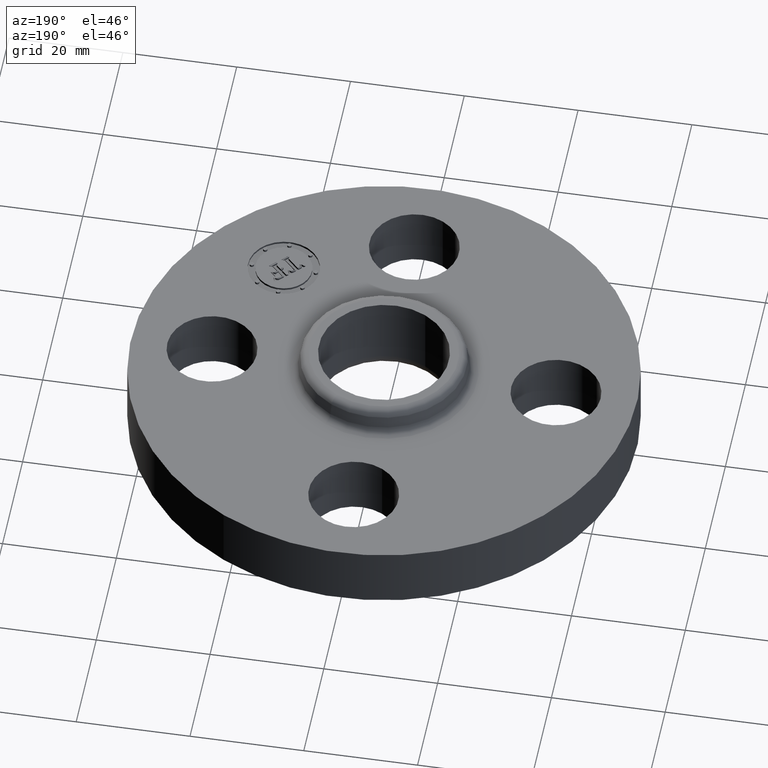
[diagram: clean part render]
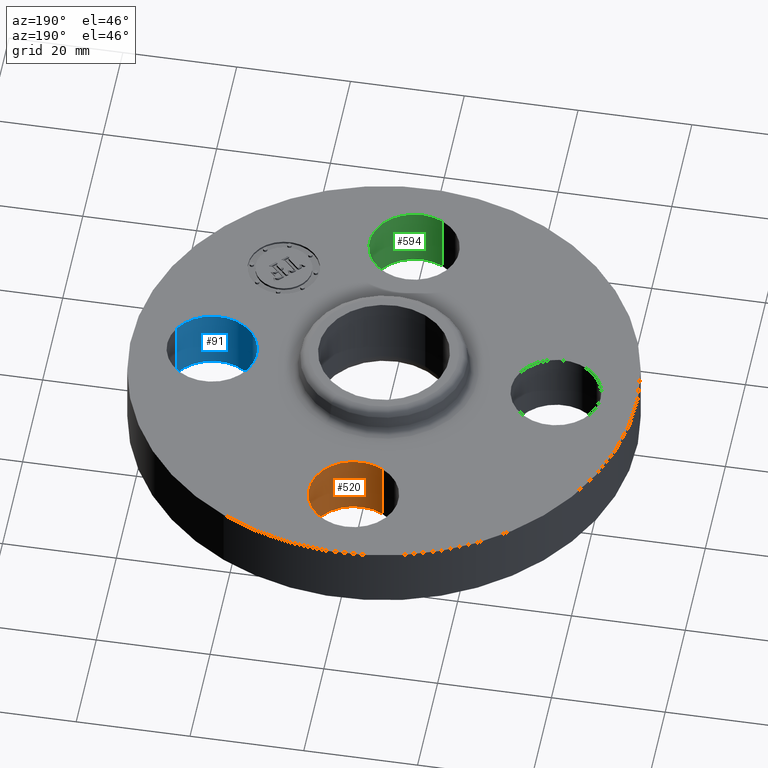
[diagram: same view with three faces highlighted in distinct colors, each labeled with its STEP entity id]
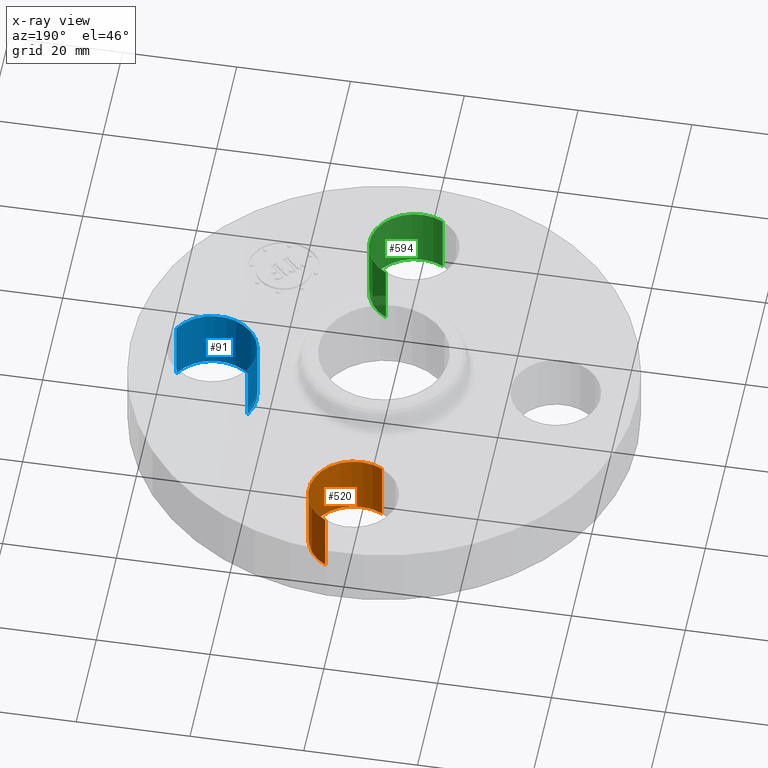
[diagram: x-ray of the same camera — body ghosted, the three highlighted faces saturated]
A machine part, auxiliary view with three faces highlighted in distinct colors.
The next image is the same camera in x-ray (body ghosted, the three faces saturated) — at least one of them is partly hidden behind the body in this view.
Their STEP definitions:

[orange] entity #520 — the highlighted cylindrical surface (partial cylindrical patch) has radius 7.874 mm, axis along (0, 0, -1).
#470=AXIS2_PLACEMENT_3D('Circle Axis2P3D',#468,#469,$) ;
#481=AXIS2_PLACEMENT_3D('Cylinder Axis2P3D',#478,#479,#480) ;
#511=AXIS2_PLACEMENT_3D('Circle Axis2P3D',#509,#510,$) ;
#463=CARTESIAN_POINT('Vertex',(-0.148621916968,0.917949405818,0.)) ;
#465=CARTESIAN_POINT('Vertex',(0.148621916968,1.46205059419,0.)) ;
#468=CARTESIAN_POINT('Axis2P3D Location',(1.04902962957E-016,1.19,0.)) ;
#478=CARTESIAN_POINT('Axis2P3D Location',(-7.87288363731E-017,1.19,0.436062992128)) ;
#483=CARTESIAN_POINT('Line Origine',(-0.148621916968,0.917949405818,0.220000000001)) ;
#487=CARTESIAN_POINT('Vertex',(-0.148621916968,0.917949405818,0.440000000002)) ;
#490=CARTESIAN_POINT('Line Origine',(0.148621916968,1.46205059419,0.220000000001)) ;
#494=CARTESIAN_POINT('Vertex',(0.148621916968,1.46205059419,0.440000000002)) ;
#509=CARTESIAN_POINT('Axis2P3D Location',(-7.87288363731E-017,1.19,0.440000000002)) ;
#469=DIRECTION('Axis2P3D Direction',(0.,0.,-0.0393700787402)) ;
#479=DIRECTION('Axis2P3D Direction',(0.,0.,-0.0393700787402)) ;
#480=DIRECTION('Axis2P3D XDirection',(0.0188750212049,0.0345504945626,0.)) ;
#484=DIRECTION('Vector Direction',(0.,0.,-0.0393700787402)) ;
#491=DIRECTION('Vector Direction',(0.,0.,-0.0393700787402)) ;
#510=DIRECTION('Axis2P3D Direction',(0.,0.,-0.0393700787402)) ;
#485=VECTOR('Line Direction',#484,0.0393700787402) ;
#492=VECTOR('Line Direction',#491,0.0393700787402) ;
#515=ORIENTED_EDGE('',*,*,#496,.F.) ;
#516=ORIENTED_EDGE('',*,*,#472,.T.) ;
#517=ORIENTED_EDGE('',*,*,#489,.T.) ;
#518=ORIENTED_EDGE('',*,*,#513,.F.) ;
#520=ADVANCED_FACE('PartBody',(#519),#482,.F.) ;
#471=CIRCLE('generated circle',#470,0.310000000001) ;
#512=CIRCLE('generated circle',#511,0.310000000001) ;
#482=CYLINDRICAL_SURFACE('generated cylinder',#481,0.310000000001) ;
#472=EDGE_CURVE('',#466,#464,#471,.T.) ;
#489=EDGE_CURVE('',#464,#488,#486,.F.) ;
#496=EDGE_CURVE('',#466,#495,#493,.F.) ;
#513=EDGE_CURVE('',#495,#488,#512,.T.) ;
#514=EDGE_LOOP('',(#515,#516,#517,#518)) ;
#519=FACE_OUTER_BOUND('',#514,.T.) ;
#486=LINE('Line',#483,#485) ;
#493=LINE('Line',#490,#492) ;
#464=VERTEX_POINT('',#463) ;
#466=VERTEX_POINT('',#465) ;
#488=VERTEX_POINT('',#487) ;
#495=VERTEX_POINT('',#494) ;

[blue] entity #91 — the highlighted cylindrical surface (partial cylindrical patch) has radius 7.874 mm, axis along (0, -0, -1).
#38=AXIS2_PLACEMENT_3D('Cylinder Axis2P3D',#35,#36,#37) ;
#77=AXIS2_PLACEMENT_3D('Circle Axis2P3D',#75,#76,$) ;
#82=AXIS2_PLACEMENT_3D('Circle Axis2P3D',#80,#81,$) ;
#35=CARTESIAN_POINT('Axis2P3D Location',(1.19,0.,0.436062992128)) ;
#40=CARTESIAN_POINT('Line Origine',(0.917949405818,0.148621916968,0.220000000001)) ;
#44=CARTESIAN_POINT('Vertex',(0.917949405818,0.148621916968,0.)) ;
#46=CARTESIAN_POINT('Vertex',(0.917949405818,0.148621916968,0.440000000002)) ;
#53=CARTESIAN_POINT('Vertex',(1.46205059419,-0.148621916968,0.)) ;
#56=CARTESIAN_POINT('Line Origine',(1.46205059419,-0.148621916968,0.220000000001)) ;
#60=CARTESIAN_POINT('Vertex',(1.46205059419,-0.148621916968,0.440000000002)) ;
#75=CARTESIAN_POINT('Axis2P3D Location',(1.19,0.,0.)) ;
#80=CARTESIAN_POINT('Axis2P3D Location',(1.19,0.,0.440000000002)) ;
#36=DIRECTION('Axis2P3D Direction',(0.,-0.,-0.0393700787402)) ;
#37=DIRECTION('Axis2P3D XDirection',(0.0345504945626,-0.0188750212049,0.)) ;
#41=DIRECTION('Vector Direction',(0.,0.,-0.0393700787402)) ;
#57=DIRECTION('Vector Direction',(0.,0.,-0.0393700787402)) ;
#76=DIRECTION('Axis2P3D Direction',(0.,-0.,-0.0393700787402)) ;
#81=DIRECTION('Axis2P3D Direction',(0.,-0.,-0.0393700787402)) ;
#42=VECTOR('Line Direction',#41,0.0393700787402) ;
#58=VECTOR('Line Direction',#57,0.0393700787402) ;
#86=ORIENTED_EDGE('',*,*,#62,.F.) ;
#87=ORIENTED_EDGE('',*,*,#79,.T.) ;
#88=ORIENTED_EDGE('',*,*,#48,.T.) ;
#89=ORIENTED_EDGE('',*,*,#84,.F.) ;
#91=ADVANCED_FACE('PartBody',(#90),#39,.F.) ;
#78=CIRCLE('generated circle',#77,0.310000000001) ;
#83=CIRCLE('generated circle',#82,0.310000000001) ;
#39=CYLINDRICAL_SURFACE('generated cylinder',#38,0.310000000001) ;
#48=EDGE_CURVE('',#45,#47,#43,.F.) ;
#62=EDGE_CURVE('',#54,#61,#59,.F.) ;
#79=EDGE_CURVE('',#54,#45,#78,.T.) ;
#84=EDGE_CURVE('',#61,#47,#83,.T.) ;
#85=EDGE_LOOP('',(#86,#87,#88,#89)) ;
#90=FACE_OUTER_BOUND('',#85,.T.) ;
#43=LINE('Line',#40,#42) ;
#59=LINE('Line',#56,#58) ;
#45=VERTEX_POINT('',#44) ;
#47=VERTEX_POINT('',#46) ;
#54=VERTEX_POINT('',#53) ;
#61=VERTEX_POINT('',#60) ;

[green] entity #594 — the highlighted cylindrical surface (partial cylindrical patch) has radius 7.874 mm, axis along (0, -0, -1).
#425=AXIS2_PLACEMENT_3D('Circle Axis2P3D',#423,#424,$) ;
#567=AXIS2_PLACEMENT_3D('Cylinder Axis2P3D',#564,#565,#566) ;
#585=AXIS2_PLACEMENT_3D('Circle Axis2P3D',#583,#584,$) ;
#423=CARTESIAN_POINT('Axis2P3D Location',(6.99353086378E-017,-1.19,0.)) ;
#427=CARTESIAN_POINT('Vertex',(0.148621916968,-0.917949405818,0.)) ;
#429=CARTESIAN_POINT('Vertex',(-0.148621916968,-1.46205059419,0.)) ;
#564=CARTESIAN_POINT('Axis2P3D Location',(-6.70041327261E-017,-1.19,0.436062992128)) ;
#569=CARTESIAN_POINT('Line Origine',(0.148621916968,-0.917949405818,0.220000000001)) ;
#573=CARTESIAN_POINT('Vertex',(0.148621916968,-0.917949405818,0.440000000002)) ;
#576=CARTESIAN_POINT('Line Origine',(-0.148621916968,-1.46205059419,0.220000000001)) ;
#580=CARTESIAN_POINT('Vertex',(-0.148621916968,-1.46205059419,0.440000000002)) ;
#583=CARTESIAN_POINT('Axis2P3D Location',(-6.70041327261E-017,-1.19,0.440000000002)) ;
#424=DIRECTION('Axis2P3D Direction',(0.,0.,-0.0393700787402)) ;
#565=DIRECTION('Axis2P3D Direction',(0.,-0.,-0.0393700787402)) ;
#566=DIRECTION('Axis2P3D XDirection',(-0.0188750212049,-0.0345504945626,0.)) ;
#570=DIRECTION('Vector Direction',(0.,0.,-0.0393700787402)) ;
#577=DIRECTION('Vector Direction',(0.,0.,-0.0393700787402)) ;
#584=DIRECTION('Axis2P3D Direction',(0.,-0.,-0.0393700787402)) ;
#571=VECTOR('Line Direction',#570,0.0393700787402) ;
#578=VECTOR('Line Direction',#577,0.0393700787402) ;
#589=ORIENTED_EDGE('',*,*,#575,.F.) ;
#590=ORIENTED_EDGE('',*,*,#431,.T.) ;
#591=ORIENTED_EDGE('',*,*,#582,.T.) ;
#592=ORIENTED_EDGE('',*,*,#587,.F.) ;
#594=ADVANCED_FACE('PartBody',(#593),#568,.F.) ;
#426=CIRCLE('generated circle',#425,0.310000000001) ;
#586=CIRCLE('generated circle',#585,0.310000000001) ;
#568=CYLINDRICAL_SURFACE('generated cylinder',#567,0.310000000001) ;
#431=EDGE_CURVE('',#428,#430,#426,.T.) ;
#575=EDGE_CURVE('',#428,#574,#572,.F.) ;
#582=EDGE_CURVE('',#430,#581,#579,.F.) ;
#587=EDGE_CURVE('',#574,#581,#586,.T.) ;
#588=EDGE_LOOP('',(#589,#590,#591,#592)) ;
#593=FACE_OUTER_BOUND('',#588,.T.) ;
#572=LINE('Line',#569,#571) ;
#579=LINE('Line',#576,#578) ;
#428=VERTEX_POINT('',#427) ;
#430=VERTEX_POINT('',#429) ;
#574=VERTEX_POINT('',#573) ;
#581=VERTEX_POINT('',#580) ;